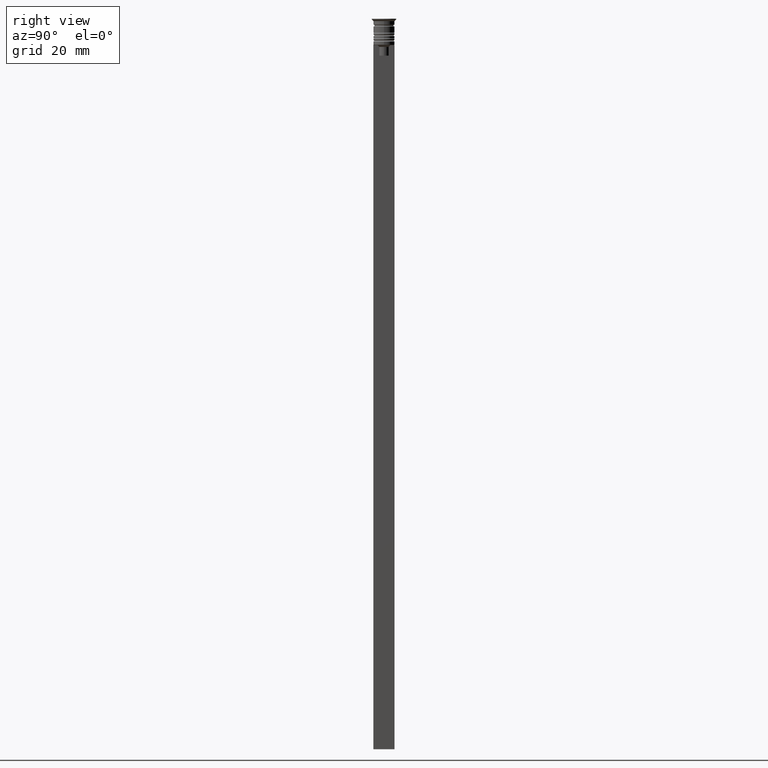
[diagram: clean part render]
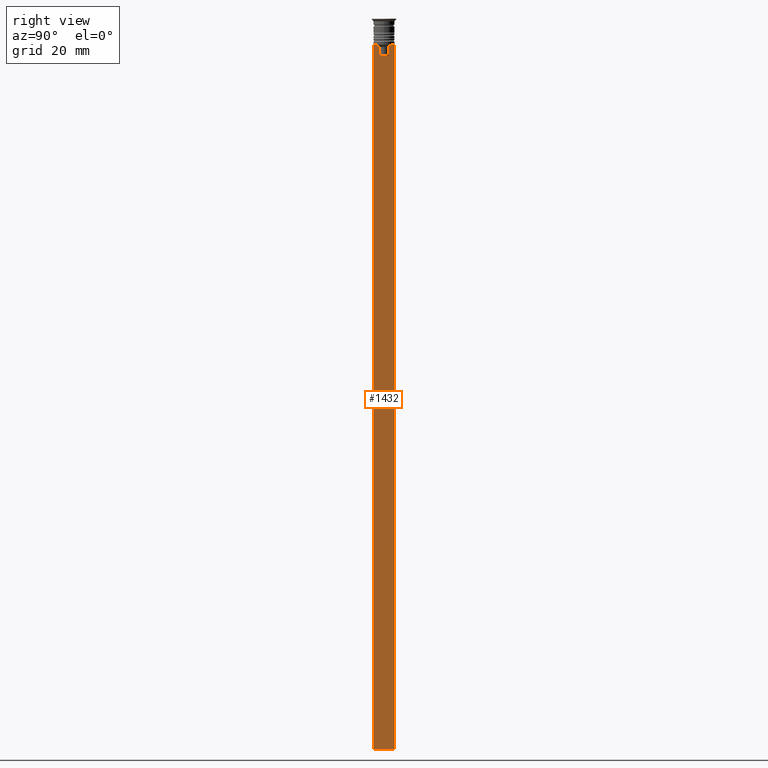
[diagram: same view with one face highlighted and labeled with its STEP entity id]
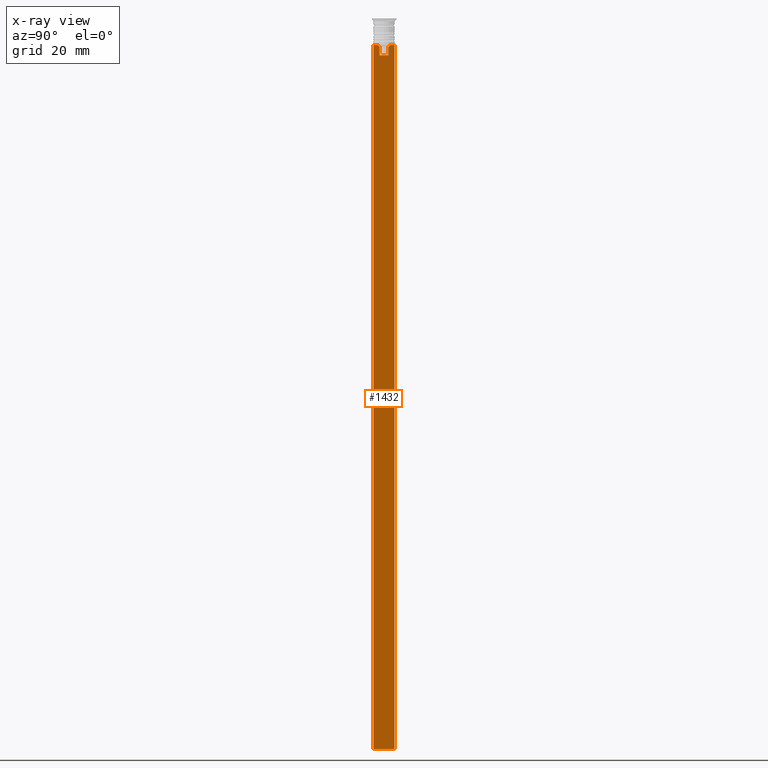
[diagram: x-ray of the same camera — body ghosted, the highlighted face saturated]
A machine part, right view. The second image highlights one B-rep face of the part: STEP entity #1432.
The next image is the same camera in x-ray: the body ghosted, the highlighted face saturated — about 0% of this face is hidden behind the body in this view.
In plain terms, the highlighted planar face has unit normal (-1, 0, 0).
Its self-contained STEP definition (entity closure, byte-faithful):
#2 = VERTEX_POINT ( 'NONE', #1225 ) ;
#14 = ORIENTED_EDGE ( 'NONE', *, *, #417, .T. ) ;
#17 = DIRECTION ( 'NONE',  ( -1.000000000000000000, 0.000000000000000000, 0.000000000000000000 ) ) ;
#71 = DIRECTION ( 'NONE',  ( 0.000000000000000000, 0.000000000000000000, -1.000000000000000000 ) ) ;
#92 = EDGE_CURVE ( 'NONE', #212, #971, #890, .T. ) ;
#106 = CARTESIAN_POINT ( 'NONE',  ( 0.4999999999999998890, -3.000000000000000000, -7.500000000000000000 ) ) ;
#120 = EDGE_LOOP ( 'NONE', ( #1491, #1057, #300, #430, #1190, #1488, #404, #14, #1187, #1447, #1127, #1202 ) ) ;
#147 = VERTEX_POINT ( 'NONE', #1073 ) ;
#159 = CARTESIAN_POINT ( 'NONE',  ( 0.4999999999999998890, -1.307669683062199439, 0.000000000000000000 ) ) ;
#190 = VERTEX_POINT ( 'NONE', #227 ) ;
#191 = CARTESIAN_POINT ( 'NONE',  ( 0.4999999999999998890, -1.307669683062199439, -8.000000000000000000 ) ) ;
#212 = VERTEX_POINT ( 'NONE', #191 ) ;
#227 = CARTESIAN_POINT ( 'NONE',  ( 0.4999999999999998890, 1.307669683062199439, -8.000000000000000000 ) ) ;
#234 = EDGE_CURVE ( 'NONE', #1869, #340, #895, .T. ) ;
#237 = CARTESIAN_POINT ( 'NONE',  ( 0.4999999999999998890, 3.000000000000000000, -1.417237469701779329 ) ) ;
#252 = VERTEX_POINT ( 'NONE', #1098 ) ;
#281 = DIRECTION ( 'NONE',  ( 0.000000000000000000, 1.000000000000000000, 0.000000000000000000 ) ) ;
#300 = ORIENTED_EDGE ( 'NONE', *, *, #463, .T. ) ;
#324 = CARTESIAN_POINT ( 'NONE',  ( 0.4999999999999998890, 1.833030277982335754, -7.500000000000000000 ) ) ;
#329 = DIRECTION ( 'NONE',  ( 0.000000000000000000, -1.000000000000000000, 0.000000000000000000 ) ) ;
#340 = VERTEX_POINT ( 'NONE', #2038 ) ;
#342 = EDGE_CURVE ( 'NONE', #2, #340, #1890, .T. ) ;
#348 = LINE ( 'NONE', #1047, #1925 ) ;
#403 = CARTESIAN_POINT ( 'NONE',  ( 0.4999999999999998890, -3.000000000000000000, -1.417237469701779329 ) ) ;
#404 = ORIENTED_EDGE ( 'NONE', *, *, #719, .T. ) ;
#417 = EDGE_CURVE ( 'NONE', #147, #1703, #1581, .T. ) ;
#430 = ORIENTED_EDGE ( 'NONE', *, *, #1686, .T. ) ;
#452 = LINE ( 'NONE', #1165, #2278 ) ;
#463 = EDGE_CURVE ( 'NONE', #190, #1853, #1947, .T. ) ;
#478 = CARTESIAN_POINT ( 'NONE',  ( 0.4999999999999998890, 1.833030277982335754, -7.500000000000000000 ) ) ;
#479 = EDGE_CURVE ( 'NONE', #1869, #252, #348, .T. ) ;
#481 = DIRECTION ( 'NONE',  ( 0.000000000000000000, -1.000000000000000000, 0.000000000000000000 ) ) ;
#492 = CARTESIAN_POINT ( 'NONE',  ( 0.4999999999999998890, -1.659011726860414093, -7.667884880598472286 ) ) ;
#527 = CARTESIAN_POINT ( 'NONE',  ( 0.4999999999999998890, -3.000000000000000000, -7.500000000000000000 ) ) ;
#533 = CARTESIAN_POINT ( 'NONE',  ( 0.4999999999999998890, 1.307669683062199439, -8.000000000000000000 ) ) ;
#579 = VECTOR ( 'NONE', #2251, 1000.000000000000000 ) ;
#677 = CARTESIAN_POINT ( 'NONE',  ( 0.4999999999999998890, 1.659046061654642967, -7.667851756010362507 ) ) ;
#719 = EDGE_CURVE ( 'NONE', #971, #147, #810, .T. ) ;
#810 = LINE ( 'NONE', #1697, #579 ) ;
#890 = B_SPLINE_CURVE_WITH_KNOTS ( 'NONE', 3,
 ( #1563, #2117, #492, #1204 ),
 .UNSPECIFIED., .F., .F.,
 ( 4, 4 ),
 ( 0.007225659348748082224, 0.007950554640278054835 ),
 .UNSPECIFIED. ) ;
#895 = LINE ( 'NONE', #237, #1582 ) ;
#944 = EDGE_CURVE ( 'NONE', #2199, #212, #1397, .T. ) ;
#971 = VERTEX_POINT ( 'NONE', #1066 ) ;
#981 = CARTESIAN_POINT ( 'NONE',  ( 0.4999999999999998890, 1.307669683062199439, -10.49999999999999822 ) ) ;
#1047 = CARTESIAN_POINT ( 'NONE',  ( 0.4999999999999998890, -3.000000000000000000, -7.500000000000000000 ) ) ;
#1057 = ORIENTED_EDGE ( 'NONE', *, *, #1844, .T. ) ;
#1066 = CARTESIAN_POINT ( 'NONE',  ( 0.4999999999999998890, -1.833030277982335754, -7.500000000000000000 ) ) ;
#1073 = CARTESIAN_POINT ( 'NONE',  ( 0.4999999999999998890, -2.856571371417139904, -7.500000000000000000 ) ) ;
#1080 = CARTESIAN_POINT ( 'NONE',  ( 0.4999999999999998890, -3.000000000000000000, -7.500000000000000000 ) ) ;
#1098 = CARTESIAN_POINT ( 'NONE',  ( 0.4999999999999998890, 2.856571371417139904, -7.500000000000000000 ) ) ;
#1115 = VERTEX_POINT ( 'NONE', #324 ) ;
#1127 = ORIENTED_EDGE ( 'NONE', *, *, #234, .F. ) ;
#1144 = CARTESIAN_POINT ( 'NONE',  ( 0.4999999999999998890, -3.000000000000000000, -207.5000000000000284 ) ) ;
#1165 = CARTESIAN_POINT ( 'NONE',  ( 0.4999999999999998890, 1.399999999999997691, -10.49999999999999822 ) ) ;
#1176 = VECTOR ( 'NONE', #71, 1000.000000000000000 ) ;
#1187 = ORIENTED_EDGE ( 'NONE', *, *, #1600, .T. ) ;
#1190 = ORIENTED_EDGE ( 'NONE', *, *, #944, .T. ) ;
#1202 = ORIENTED_EDGE ( 'NONE', *, *, #479, .T. ) ;
#1204 = CARTESIAN_POINT ( 'NONE',  ( 0.4999999999999998890, -1.833030277982335754, -7.500000000000000000 ) ) ;
#1225 = CARTESIAN_POINT ( 'NONE',  ( 0.4999999999999998890, -3.000000000000000000, -207.5000000000000284 ) ) ;
#1262 = DIRECTION ( 'NONE',  ( 0.000000000000000000, 0.000000000000000000, -1.000000000000000000 ) ) ;
#1271 = DIRECTION ( 'NONE',  ( 0.000000000000000000, 0.000000000000000000, 1.000000000000000000 ) ) ;
#1278 = VECTOR ( 'NONE', #2125, 1000.000000000000000 ) ;
#1353 = CARTESIAN_POINT ( 'NONE',  ( 0.4999999999999998890, 1.484355510416485835, -7.834966642958598015 ) ) ;
#1397 = LINE ( 'NONE', #159, #1511 ) ;
#1432 = ADVANCED_FACE ( 'NONE', ( #1895 ), #1622, .F. ) ;
#1436 = VECTOR ( 'NONE', #1950, 1000.000000000000000 ) ;
#1447 = ORIENTED_EDGE ( 'NONE', *, *, #342, .T. ) ;
#1488 = ORIENTED_EDGE ( 'NONE', *, *, #92, .T. ) ;
#1491 = ORIENTED_EDGE ( 'NONE', *, *, #1953, .T. ) ;
#1508 = VECTOR ( 'NONE', #329, 1000.000000000000000 ) ;
#1511 = VECTOR ( 'NONE', #1589, 1000.000000000000000 ) ;
#1563 = CARTESIAN_POINT ( 'NONE',  ( 0.4999999999999998890, -1.307669683062199439, -8.000000000000000000 ) ) ;
#1581 = LINE ( 'NONE', #527, #1508 ) ;
#1582 = VECTOR ( 'NONE', #1262, 1000.000000000000000 ) ;
#1589 = DIRECTION ( 'NONE',  ( -0.000000000000000000, -0.000000000000000000, 1.000000000000000000 ) ) ;
#1600 = EDGE_CURVE ( 'NONE', #1703, #2, #2023, .T. ) ;
#1604 = CARTESIAN_POINT ( 'NONE',  ( 0.4999999999999998890, 1.307669683062199439, 0.000000000000000000 ) ) ;
#1608 = CARTESIAN_POINT ( 'NONE',  ( 0.4999999999999998890, -3.000000000000000000, -1.417237469701779329 ) ) ;
#1622 = PLANE ( 'NONE',  #1894 ) ;
#1686 = EDGE_CURVE ( 'NONE', #1853, #2199, #452, .T. ) ;
#1697 = CARTESIAN_POINT ( 'NONE',  ( 0.4999999999999998890, -3.000000000000000000, -7.500000000000000000 ) ) ;
#1703 = VERTEX_POINT ( 'NONE', #106 ) ;
#1844 = EDGE_CURVE ( 'NONE', #1115, #190, #2233, .T. ) ;
#1847 = VECTOR ( 'NONE', #281, 1000.000000000000000 ) ;
#1853 = VERTEX_POINT ( 'NONE', #981 ) ;
#1869 = VERTEX_POINT ( 'NONE', #2249 ) ;
#1888 = DIRECTION ( 'NONE',  ( 0.000000000000000000, -1.000000000000000000, 0.000000000000000000 ) ) ;
#1890 = LINE ( 'NONE', #1144, #1847 ) ;
#1894 = AXIS2_PLACEMENT_3D ( 'NONE', #1608, #17, #1271 ) ;
#1895 = FACE_OUTER_BOUND ( 'NONE', #120, .T. ) ;
#1925 = VECTOR ( 'NONE', #481, 1000.000000000000000 ) ;
#1947 = LINE ( 'NONE', #1604, #1278 ) ;
#1950 = DIRECTION ( 'NONE',  ( 0.000000000000000000, -1.000000000000000000, 0.000000000000000000 ) ) ;
#1953 = EDGE_CURVE ( 'NONE', #252, #1115, #1984, .T. ) ;
#1984 = LINE ( 'NONE', #1080, #1436 ) ;
#2023 = LINE ( 'NONE', #403, #1176 ) ;
#2038 = CARTESIAN_POINT ( 'NONE',  ( 0.4999999999999998890, 3.000000000000000000, -207.5000000000000284 ) ) ;
#2096 = CARTESIAN_POINT ( 'NONE',  ( 0.4999999999999998890, -1.307669683062199439, -10.49999999999999822 ) ) ;
#2117 = CARTESIAN_POINT ( 'NONE',  ( 0.4999999999999998890, -1.484307477388859153, -7.835011508197190722 ) ) ;
#2125 = DIRECTION ( 'NONE',  ( 0.000000000000000000, 0.000000000000000000, -1.000000000000000000 ) ) ;
#2199 = VERTEX_POINT ( 'NONE', #2096 ) ;
#2233 = B_SPLINE_CURVE_WITH_KNOTS ( 'NONE', 3,
 ( #478, #677, #1353, #533 ),
 .UNSPECIFIED., .F., .F.,
 ( 4, 4 ),
 ( 0.003278537493109848298, 0.004003794023484941178 ),
 .UNSPECIFIED. ) ;
#2249 = CARTESIAN_POINT ( 'NONE',  ( 0.4999999999999998890, 3.000000000000000000, -7.500000000000000000 ) ) ;
#2251 = DIRECTION ( 'NONE',  ( 0.000000000000000000, -1.000000000000000000, 0.000000000000000000 ) ) ;
#2278 = VECTOR ( 'NONE', #1888, 1000.000000000000000 ) ;